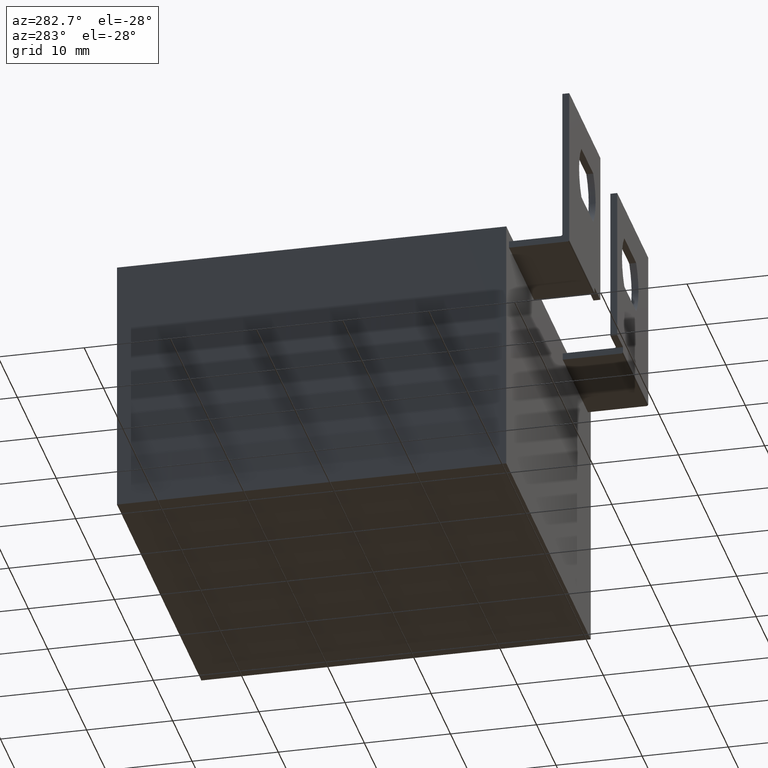
[diagram: clean part render]
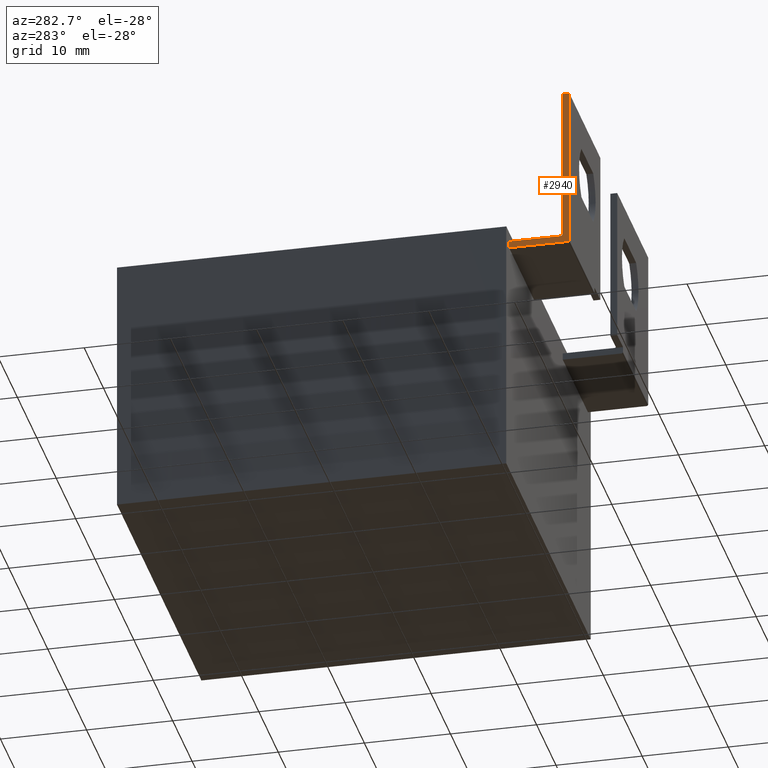
[diagram: same view with one face highlighted and labeled with its STEP entity id]
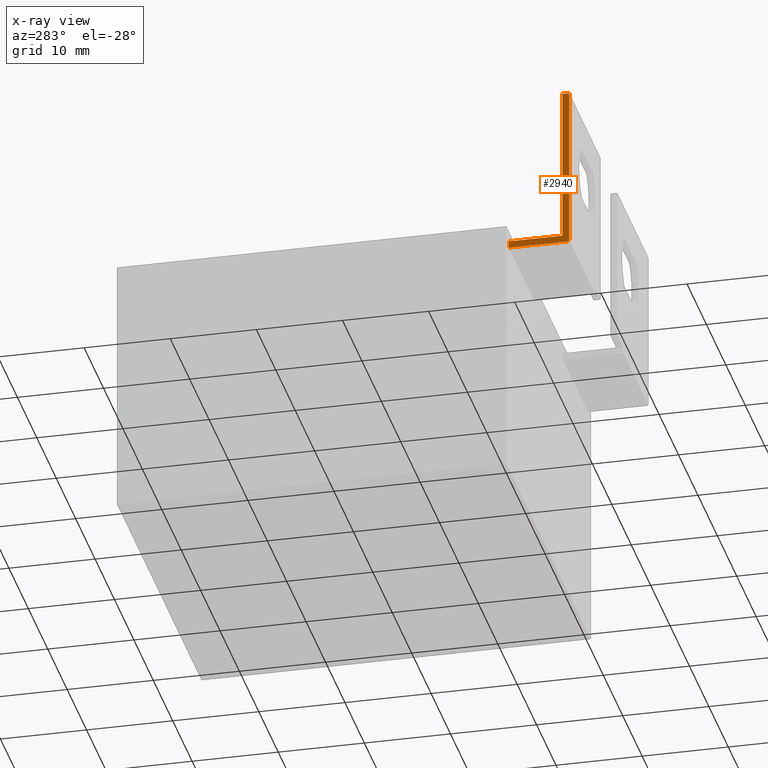
[diagram: x-ray of the same camera — body ghosted, the highlighted face saturated]
A machine part, auxiliary view. The second image highlights one B-rep face of the part: STEP entity #2940.
The next image is the same camera in x-ray: the body ghosted, the highlighted face saturated — about 0% of this face is hidden behind the body in this view.
In plain terms, the highlighted planar face has unit normal (1, 0, 0).
Its self-contained STEP definition (entity closure, byte-faithful):
#16 = CIRCLE ( 'NONE', #1419, 0.1999999999999987900 ) ;
#62 = CARTESIAN_POINT ( 'NONE',  ( 1.399999999999999700, -6.000000000000000000, 29.19999999999999600 ) ) ;
#103 = DIRECTION ( 'NONE',  ( -1.000000000000000000, -0.0000000000000000000, -2.710505431213766000E-016 ) ) ;
#110 = LINE ( 'NONE', #520, #797 ) ;
#194 = EDGE_CURVE ( 'NONE', #1640, #610, #1535, .T. ) ;
#223 = VECTOR ( 'NONE', #2166, 1000.000000000000000 ) ;
#231 = AXIS2_PLACEMENT_3D ( 'NONE', #1720, #3355, #3373 ) ;
#284 = ORIENTED_EDGE ( 'NONE', *, *, #1988, .T. ) ;
#362 = CARTESIAN_POINT ( 'NONE',  ( 1.399999999999999700, -6.000000000000000000, 29.39999999999999500 ) ) ;
#416 = ORIENTED_EDGE ( 'NONE', *, *, #3211, .F. ) ;
#454 = FACE_OUTER_BOUND ( 'NONE', #1142, .T. ) ;
#459 = CIRCLE ( 'NONE', #695, 0.1999999999999987900 ) ;
#520 = CARTESIAN_POINT ( 'NONE',  ( 1.399999999999999700, -7.000000000000000000, 29.19999999999999600 ) ) ;
#610 = VERTEX_POINT ( 'NONE', #2974 ) ;
#636 = CARTESIAN_POINT ( 'NONE',  ( 1.399999999999999900, -6.800000000000000700, 28.59999999999999800 ) ) ;
#644 = CARTESIAN_POINT ( 'NONE',  ( 1.399999999999999900, 0.0000000000000000000, 28.39999999999999900 ) ) ;
#658 = VECTOR ( 'NONE', #1487, 1000.000000000000000 ) ;
#695 = AXIS2_PLACEMENT_3D ( 'NONE', #636, #103, #2586 ) ;
#744 = VERTEX_POINT ( 'NONE', #896 ) ;
#797 = VECTOR ( 'NONE', #3453, 1000.000000000000000 ) ;
#809 = CARTESIAN_POINT ( 'NONE',  ( 1.399999999999999900, -7.000000000000000000, 28.39999999999999900 ) ) ;
#829 = VECTOR ( 'NONE', #2268, 1000.000000000000000 ) ;
#896 = CARTESIAN_POINT ( 'NONE',  ( 1.399999999999999900, -7.000000000000000000, 28.59999999999999800 ) ) ;
#1041 = CARTESIAN_POINT ( 'NONE',  ( 1.399999999999992100, -6.200000000000000200, 47.39999999999999900 ) ) ;
#1070 = CARTESIAN_POINT ( 'NONE',  ( 1.399999999999999700, 0.0000000000000000000, 29.19999999999999600 ) ) ;
#1124 = VECTOR ( 'NONE', #2046, 1000.000000000000000 ) ;
#1142 = EDGE_LOOP ( 'NONE', ( #2507, #1912, #416, #1238, #284, #3067, #1259, #3224 ) ) ;
#1183 = CARTESIAN_POINT ( 'NONE',  ( 1.399999999999992100, -7.000000000000000000, 47.39999999999999900 ) ) ;
#1222 = PLANE ( 'NONE',  #231 ) ;
#1238 = ORIENTED_EDGE ( 'NONE', *, *, #3325, .F. ) ;
#1256 = CARTESIAN_POINT ( 'NONE',  ( 1.399999999999999900, -7.000000000000000000, 28.39999999999999900 ) ) ;
#1259 = ORIENTED_EDGE ( 'NONE', *, *, #1468, .T. ) ;
#1378 = LINE ( 'NONE', #1256, #658 ) ;
#1419 = AXIS2_PLACEMENT_3D ( 'NONE', #362, #1999, #2012 ) ;
#1468 = EDGE_CURVE ( 'NONE', #3292, #1640, #110, .T. ) ;
#1487 = DIRECTION ( 'NONE',  ( -0.0000000000000000000, 1.000000000000000000, -0.0000000000000000000 ) ) ;
#1535 = LINE ( 'NONE', #644, #829 ) ;
#1593 = CARTESIAN_POINT ( 'NONE',  ( 1.399999999999999900, -6.800000000000000700, 28.39999999999999900 ) ) ;
#1640 = VERTEX_POINT ( 'NONE', #1070 ) ;
#1720 = CARTESIAN_POINT ( 'NONE',  ( 1.399999999999999900, -7.000000000000000000, 28.39999999999999900 ) ) ;
#1743 = LINE ( 'NONE', #2478, #1124 ) ;
#1900 = VERTEX_POINT ( 'NONE', #1183 ) ;
#1912 = ORIENTED_EDGE ( 'NONE', *, *, #2362, .T. ) ;
#1988 = EDGE_CURVE ( 'NONE', #2986, #2452, #2292, .T. ) ;
#1999 = DIRECTION ( 'NONE',  ( 1.000000000000000000, 0.0000000000000000000, 2.710505431213766000E-016 ) ) ;
#2012 = DIRECTION ( 'NONE',  ( 0.0000000000000000000, 0.0000000000000000000, -1.000000000000000000 ) ) ;
#2026 = VERTEX_POINT ( 'NONE', #1593 ) ;
#2046 = DIRECTION ( 'NONE',  ( -0.0000000000000000000, -1.000000000000000000, -0.0000000000000000000 ) ) ;
#2072 = CARTESIAN_POINT ( 'NONE',  ( 1.399999999999992100, -6.200000000000000200, 29.39999999999999500 ) ) ;
#2166 = DIRECTION ( 'NONE',  ( 2.710505431213766000E-016, -0.0000000000000000000, -1.000000000000000000 ) ) ;
#2239 = EDGE_CURVE ( 'NONE', #2452, #3292, #16, .T. ) ;
#2268 = DIRECTION ( 'NONE',  ( 2.710505431213766000E-016, -0.0000000000000000000, -1.000000000000000000 ) ) ;
#2292 = LINE ( 'NONE', #1041, #2930 ) ;
#2362 = EDGE_CURVE ( 'NONE', #2026, #744, #459, .T. ) ;
#2372 = DIRECTION ( 'NONE',  ( -0.0000000000000000000, -0.0000000000000000000, -1.000000000000000000 ) ) ;
#2452 = VERTEX_POINT ( 'NONE', #2072 ) ;
#2478 = CARTESIAN_POINT ( 'NONE',  ( 1.399999999999992100, -7.000000000000000000, 47.39999999999999900 ) ) ;
#2507 = ORIENTED_EDGE ( 'NONE', *, *, #2947, .F. ) ;
#2586 = DIRECTION ( 'NONE',  ( 0.0000000000000000000, 0.0000000000000000000, -1.000000000000000000 ) ) ;
#2841 = CARTESIAN_POINT ( 'NONE',  ( 1.399999999999992100, -6.200000000000000200, 47.39999999999999900 ) ) ;
#2930 = VECTOR ( 'NONE', #2372, 1000.000000000000000 ) ;
#2940 = ADVANCED_FACE ( 'NONE', ( #454 ), #1222, .F. ) ;
#2947 = EDGE_CURVE ( 'NONE', #2026, #610, #1378, .T. ) ;
#2974 = CARTESIAN_POINT ( 'NONE',  ( 1.399999999999999900, 0.0000000000000000000, 28.39999999999999900 ) ) ;
#2986 = VERTEX_POINT ( 'NONE', #2841 ) ;
#3067 = ORIENTED_EDGE ( 'NONE', *, *, #2239, .T. ) ;
#3206 = LINE ( 'NONE', #809, #223 ) ;
#3211 = EDGE_CURVE ( 'NONE', #1900, #744, #3206, .T. ) ;
#3224 = ORIENTED_EDGE ( 'NONE', *, *, #194, .T. ) ;
#3292 = VERTEX_POINT ( 'NONE', #62 ) ;
#3325 = EDGE_CURVE ( 'NONE', #2986, #1900, #1743, .T. ) ;
#3355 = DIRECTION ( 'NONE',  ( 1.000000000000000000, 0.0000000000000000000, 2.710505431213766000E-016 ) ) ;
#3373 = DIRECTION ( 'NONE',  ( 2.710505431213766000E-016, 0.0000000000000000000, -1.000000000000000000 ) ) ;
#3453 = DIRECTION ( 'NONE',  ( -0.0000000000000000000, 1.000000000000000000, -0.0000000000000000000 ) ) ;